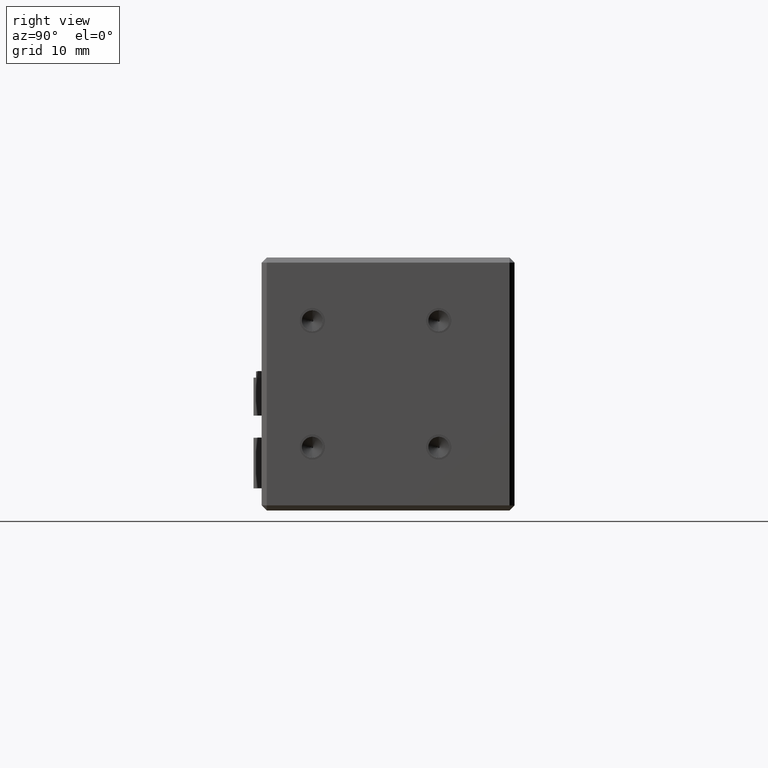
[diagram: clean part render]
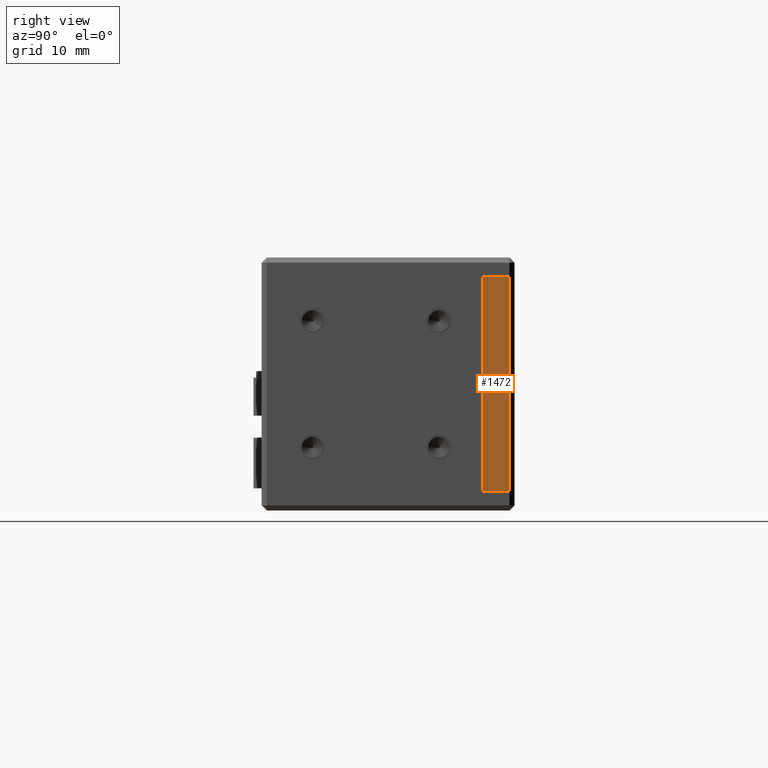
[diagram: same view with one face highlighted and labeled with its STEP entity id]
A machine part, right view. The second image highlights one B-rep face of the part: STEP entity #1472.
In plain terms, the highlighted planar face has unit normal (-1, 0, 0).
Its self-contained STEP definition (entity closure, byte-faithful):
#476 = CARTESIAN_POINT ( 'NONE',  ( 29.76222020198800100, 32.38138602246006300, 3.000000000009550600 ) ) ;
#804 = LINE ( 'NONE', #7786, #14061 ) ;
#1472 = ADVANCED_FACE ( 'NONE', ( #28165 ), #4085, .F. ) ;
#1567 = CARTESIAN_POINT ( 'NONE',  ( 29.76222020198798600, 28.18138602246006400, 37.00000000000955000 ) ) ;
#2073 = CARTESIAN_POINT ( 'NONE',  ( 29.76222020198798600, 28.18138602246006400, 3.000000000009550600 ) ) ;
#3344 = EDGE_CURVE ( 'NONE', #32260, #34098, #33807, .T. ) ;
#4075 = CARTESIAN_POINT ( 'NONE',  ( 29.76222020198798600, 28.18138602246006400, 53.00000000000955700 ) ) ;
#4085 = PLANE ( 'NONE',  #20101 ) ;
#6254 = LINE ( 'NONE', #4075, #33601 ) ;
#6443 = VERTEX_POINT ( 'NONE', #9459 ) ;
#6466 = VECTOR ( 'NONE', #24665, 1000.000000000000000 ) ;
#6672 = ORIENTED_EDGE ( 'NONE', *, *, #14261, .T. ) ;
#6933 = CARTESIAN_POINT ( 'NONE',  ( 29.76222020198798600, 27.18138602246006400, 3.000000000009550600 ) ) ;
#6968 = ORIENTED_EDGE ( 'NONE', *, *, #9378, .T. ) ;
#7786 = CARTESIAN_POINT ( 'NONE',  ( 29.76222020198800100, 33.18138602246006700, 3.000000000009550600 ) ) ;
#8872 = CARTESIAN_POINT ( 'NONE',  ( 29.76222020198798600, 33.18138602246006700, 37.00000000000955000 ) ) ;
#9378 = EDGE_CURVE ( 'NONE', #6443, #32260, #15037, .T. ) ;
#9459 = CARTESIAN_POINT ( 'NONE',  ( 29.76222020198798600, 32.38138602246007000, 3.000000000009550600 ) ) ;
#9477 = DIRECTION ( 'NONE',  ( -2.775557561562891400E-017, -5.207109099787108300E-050, -1.000000000000000000 ) ) ;
#9590 = DIRECTION ( 'NONE',  ( 2.775557561562891400E-017, 5.207109099787108300E-050, 1.000000000000000000 ) ) ;
#10430 = DIRECTION ( 'NONE',  ( -4.956352788505163400E-017, -1.000000000000000000, 1.375664245990882800E-033 ) ) ;
#10515 = EDGE_LOOP ( 'NONE', ( #6968, #26922, #6672, #27492 ) ) ;
#12710 = VERTEX_POINT ( 'NONE', #2073 ) ;
#13690 = DIRECTION ( 'NONE',  ( 2.775557561562891400E-017, 5.207109099787108300E-050, 1.000000000000000000 ) ) ;
#14061 = VECTOR ( 'NONE', #10430, 1000.000000000000000 ) ;
#14261 = EDGE_CURVE ( 'NONE', #34098, #12710, #6254, .T. ) ;
#15037 = LINE ( 'NONE', #476, #28299 ) ;
#16936 = CARTESIAN_POINT ( 'NONE',  ( 29.76222020198798600, 32.38138602246007000, 37.00000000000955000 ) ) ;
#20101 = AXIS2_PLACEMENT_3D ( 'NONE', #6933, #25361, #9590 ) ;
#24665 = DIRECTION ( 'NONE',  ( -4.956352788505163400E-017, -1.000000000000000000, 1.375664245990882800E-033 ) ) ;
#25361 = DIRECTION ( 'NONE',  ( -1.000000000000000000, 4.956352788505163400E-017, 2.775557561562891400E-017 ) ) ;
#26922 = ORIENTED_EDGE ( 'NONE', *, *, #3344, .T. ) ;
#27492 = ORIENTED_EDGE ( 'NONE', *, *, #33615, .F. ) ;
#28165 = FACE_OUTER_BOUND ( 'NONE', #10515, .T. ) ;
#28299 = VECTOR ( 'NONE', #13690, 1000.000000000000000 ) ;
#32260 = VERTEX_POINT ( 'NONE', #16936 ) ;
#33601 = VECTOR ( 'NONE', #9477, 1000.000000000000000 ) ;
#33615 = EDGE_CURVE ( 'NONE', #6443, #12710, #804, .T. ) ;
#33807 = LINE ( 'NONE', #8872, #6466 ) ;
#34098 = VERTEX_POINT ( 'NONE', #1567 ) ;